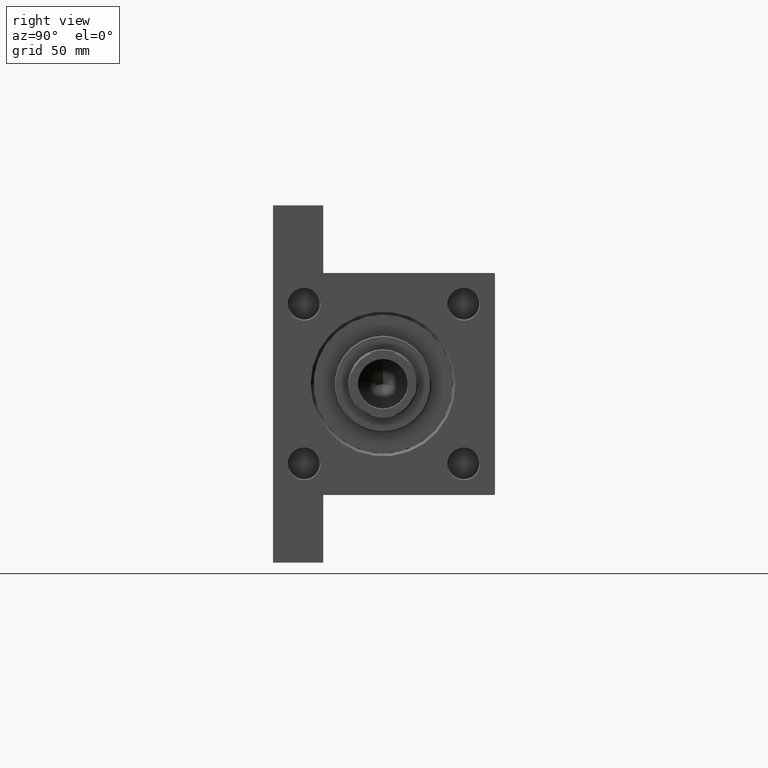
[diagram: clean part render]
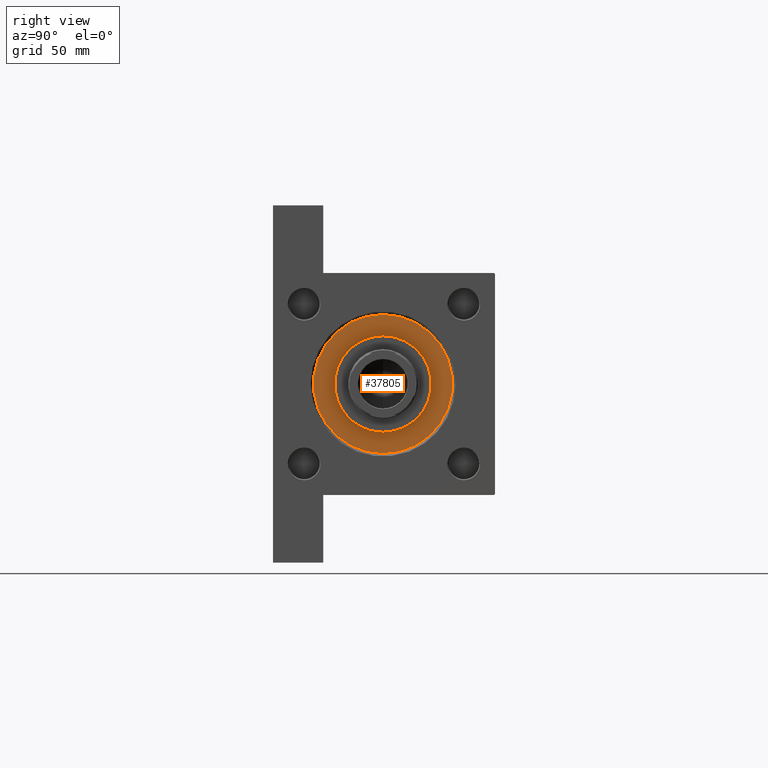
[diagram: same view with one face highlighted and labeled with its STEP entity id]
A machine part, right view. The second image highlights one B-rep face of the part: STEP entity #37805.
In plain terms, the highlighted planar face has unit normal (1, 0, 0).
Its self-contained STEP definition (entity closure, byte-faithful):
#376 = EDGE_CURVE ( 'NONE', #38653, #42203, #43877, .T. ) ;
#604 = DIRECTION ( 'NONE',  ( 1.000000000000000000, 0.000000000000000000, 0.000000000000000000 ) ) ;
#1178 = FACE_BOUND ( 'NONE', #47484, .T. ) ;
#1243 = DIRECTION ( 'NONE',  ( 1.000000000000000000, 0.000000000000000000, 0.000000000000000000 ) ) ;
#1492 = CARTESIAN_POINT ( 'NONE',  ( 36.00000000000000000, 4.408728476930470856E-15, 28.69999999999999929 ) ) ;
#5146 = CARTESIAN_POINT ( 'NONE',  ( 0.000000000000000000, 0.000000000000000000, 28.69999999999999929 ) ) ;
#8130 = AXIS2_PLACEMENT_3D ( 'NONE', #12742, #35387, #42426 ) ;
#9462 = CARTESIAN_POINT ( 'NONE',  ( 0.000000000000000000, 0.000000000000000000, 28.69999999999999929 ) ) ;
#12208 = DIRECTION ( 'NONE',  ( 0.000000000000000000, 0.000000000000000000, 1.000000000000000000 ) ) ;
#12673 = VERTEX_POINT ( 'NONE', #24252 ) ;
#12742 = CARTESIAN_POINT ( 'NONE',  ( 0.000000000000000000, 0.000000000000000000, 28.69999999999999929 ) ) ;
#13944 = EDGE_CURVE ( 'NONE', #42203, #38653, #44112, .T. ) ;
#15637 = DIRECTION ( 'NONE',  ( 1.000000000000000000, 0.000000000000000000, 0.000000000000000000 ) ) ;
#16773 = DIRECTION ( 'NONE',  ( 1.000000000000000000, 0.000000000000000000, -0.000000000000000000 ) ) ;
#17548 = AXIS2_PLACEMENT_3D ( 'NONE', #38517, #46041, #15637 ) ;
#18060 = EDGE_LOOP ( 'NONE', ( #27936, #41694 ) ) ;
#20068 = DIRECTION ( 'NONE',  ( 0.000000000000000000, 0.000000000000000000, 1.000000000000000000 ) ) ;
#22987 = CARTESIAN_POINT ( 'NONE',  ( 0.000000000000000000, 0.000000000000000000, 28.69999999999999929 ) ) ;
#23935 = EDGE_CURVE ( 'NONE', #12673, #33858, #38526, .T. ) ;
#24252 = CARTESIAN_POINT ( 'NONE',  ( 25.00000000000000000, 3.061616997868383043E-15, 28.69999999999999929 ) ) ;
#24775 = ORIENTED_EDGE ( 'NONE', *, *, #23935, .F. ) ;
#25656 = AXIS2_PLACEMENT_3D ( 'NONE', #5146, #12208, #1243 ) ;
#27936 = ORIENTED_EDGE ( 'NONE', *, *, #13944, .T. ) ;
#30134 = AXIS2_PLACEMENT_3D ( 'NONE', #22987, #20068, #604 ) ;
#33858 = VERTEX_POINT ( 'NONE', #42072 ) ;
#34779 = FACE_OUTER_BOUND ( 'NONE', #18060, .T. ) ;
#35387 = DIRECTION ( 'NONE',  ( 0.000000000000000000, 0.000000000000000000, 1.000000000000000000 ) ) ;
#37610 = CARTESIAN_POINT ( 'NONE',  ( -36.00000000000000000, 0.000000000000000000, 28.69999999999999929 ) ) ;
#37805 = ADVANCED_FACE ( 'NONE', ( #1178, #34779 ), #45960, .T. ) ;
#38517 = CARTESIAN_POINT ( 'NONE',  ( 0.000000000000000000, 0.000000000000000000, 28.69999999999999929 ) ) ;
#38526 = CIRCLE ( 'NONE', #17548, 25.00000000000000000 ) ;
#38653 = VERTEX_POINT ( 'NONE', #1492 ) ;
#41694 = ORIENTED_EDGE ( 'NONE', *, *, #376, .T. ) ;
#41934 = AXIS2_PLACEMENT_3D ( 'NONE', #9462, #42307, #16773 ) ;
#42072 = CARTESIAN_POINT ( 'NONE',  ( -25.00000000000000000, 0.000000000000000000, 28.69999999999999929 ) ) ;
#42203 = VERTEX_POINT ( 'NONE', #37610 ) ;
#42307 = DIRECTION ( 'NONE',  ( 0.000000000000000000, 0.000000000000000000, 1.000000000000000000 ) ) ;
#42426 = DIRECTION ( 'NONE',  ( 1.000000000000000000, 0.000000000000000000, 0.000000000000000000 ) ) ;
#43877 = CIRCLE ( 'NONE', #8130, 36.00000000000000000 ) ;
#44112 = CIRCLE ( 'NONE', #30134, 36.00000000000000000 ) ;
#45815 = CIRCLE ( 'NONE', #25656, 25.00000000000000000 ) ;
#45960 = PLANE ( 'NONE',  #41934 ) ;
#46041 = DIRECTION ( 'NONE',  ( 0.000000000000000000, 0.000000000000000000, 1.000000000000000000 ) ) ;
#46342 = ORIENTED_EDGE ( 'NONE', *, *, #47163, .F. ) ;
#47163 = EDGE_CURVE ( 'NONE', #33858, #12673, #45815, .T. ) ;
#47484 = EDGE_LOOP ( 'NONE', ( #46342, #24775 ) ) ;